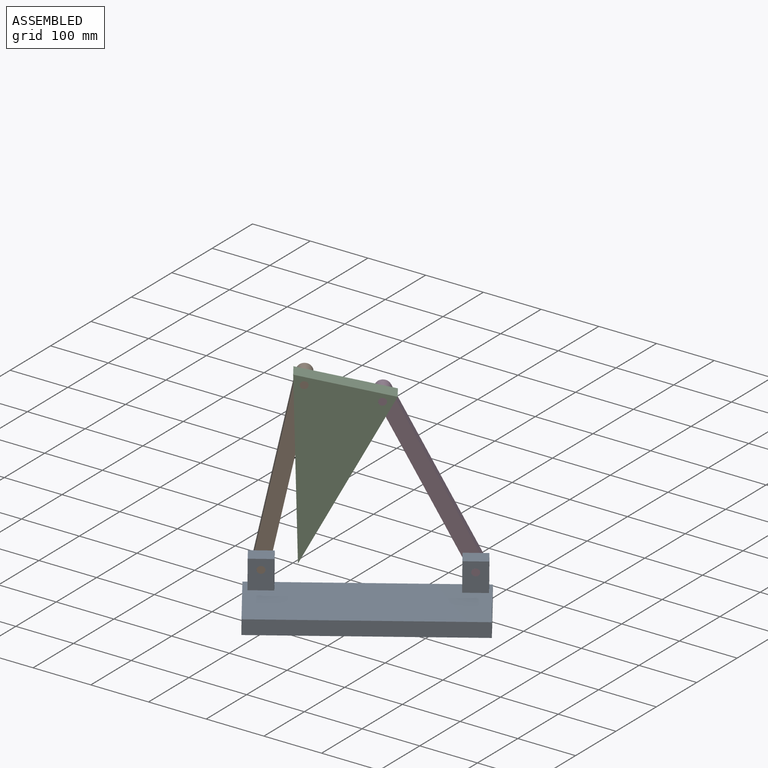
[diagram: assembled view]
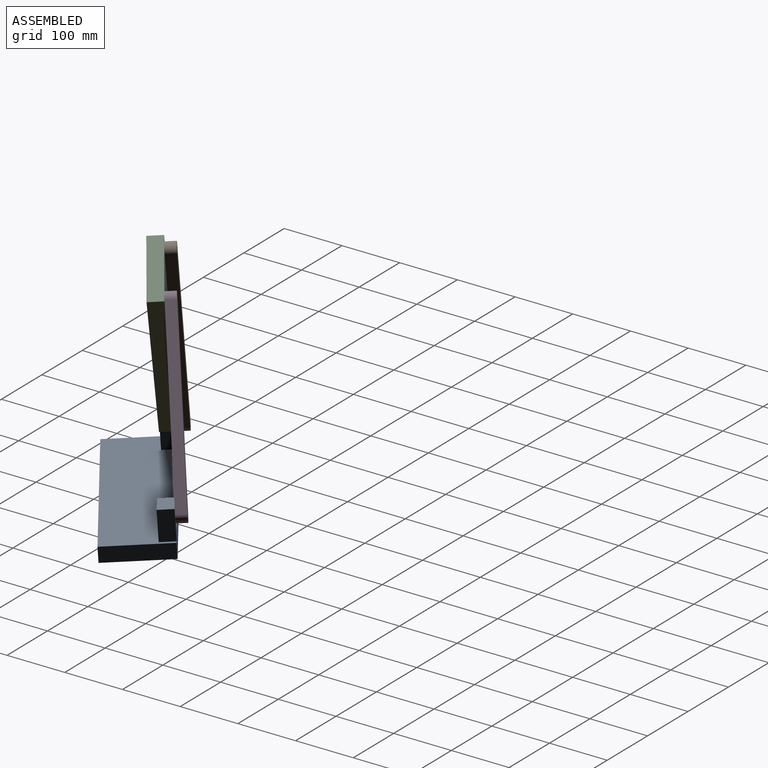
[diagram: assembled view, second angle]
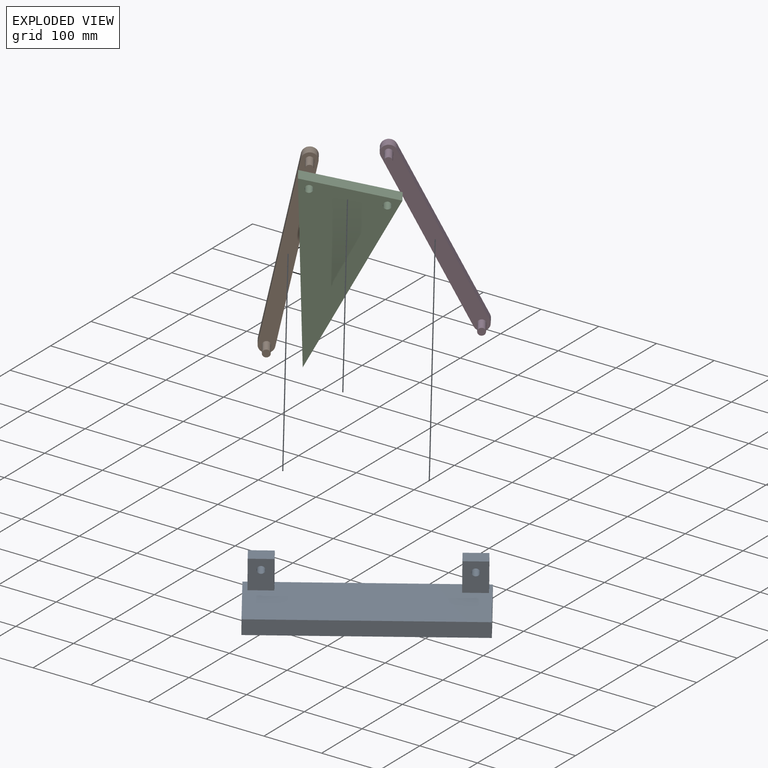
[diagram: exploded view]
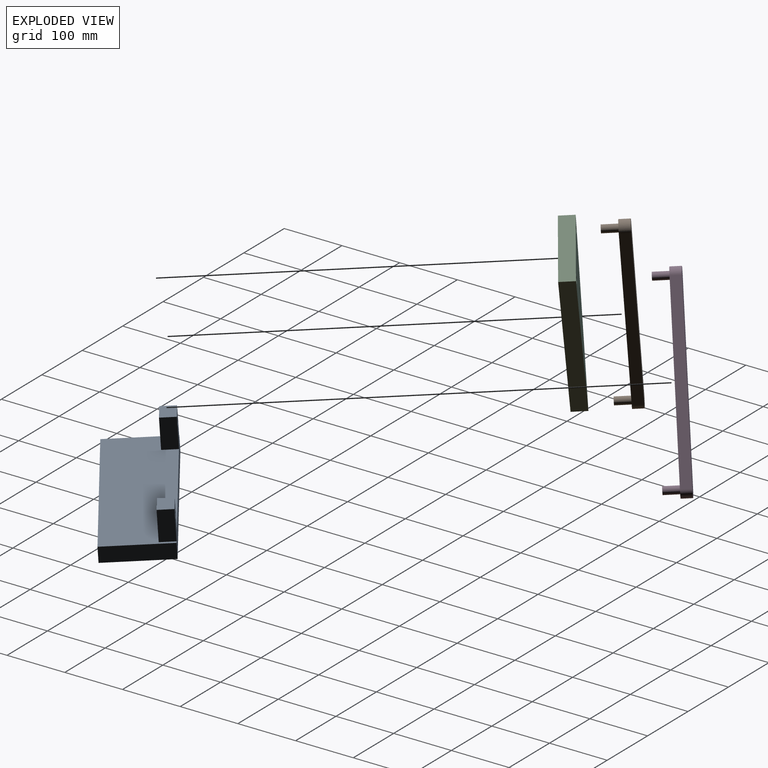
[diagram: exploded view, second angle]
ASSEMBLY  parts=4 mates=4
PART A: 16 faces, bbox 355.6x112.4x76.2 mm
  f0: plane 355.6x112.4mm, normal (0,0,1), area 38033.7mm2, adj f1,f2,f3,f4,f6,f7,f8,f10
  f1: plane 355.6x76.2mm, normal (0,1,0), area 12649.8mm2, adj f0,f2,f4,f5,f6,f7,f9,f10
  f2: plane 112.4x25.4mm, normal (-1,0,0), area 2854.9mm2, adj f0,f1,f3,f5
  f3: plane 355.6x25.4mm, normal (0,-1,0), area 9032.2mm2, adj f0,f2,f4,f5
  f4: plane 112.4x25.4mm, normal (1,0,0), area 2854.9mm2, adj f0,f1,f3,f5
  f5: plane 355.6x112.4mm, normal (0,0,-1), area 39969.1mm2, adj f1,f2,f3,f4
  f6: plane 50.8x25.4mm, normal (1,0,0), area 1290.3mm2, adj f0,f1,f8,f9
  f7: plane 50.8x25.4mm, normal (-1,0,0), area 1290.3mm2, adj f0,f1,f8,f9
  f8: plane 50.8x38.1mm, normal (0,-1,0), area 1808.8mm2, adj f0,f6,f7,f9,f15
  f9: plane 38.1x25.4mm, normal (0,0,1), area 967.7mm2, adj f1,f6,f7,f8
  f10: plane 50.8x25.4mm, normal (1,0,0), area 1290.3mm2, adj f0,f1,f12,f13
  f11: plane 50.8x25.4mm, normal (-1,0,0), area 1290.3mm2, adj f0,f1,f12,f13
  f12: plane 50.8x38.1mm, normal (0,-1,0), area 1808.8mm2, adj f0,f10,f11,f13,f14
  f13: plane 38.1x25.4mm, normal (0,0,1), area 967.7mm2, adj f1,f10,f11,f12
  f14: cylinder r=6.35mm len=25.4mm, axis (0,1,0), area 1013.4mm2, adj f1,f12
  f15: cylinder r=6.35mm len=25.4mm, axis (0,-1,0), area 1013.4mm2, adj f1,f8
PART B: 10 faces, bbox 330.2x25.4x43.2 mm
  f0: plane 304.8x17.78mm, normal (0,1,0), area 5419.3mm2, adj f1,f3,f4,f5
  f1: cylinder r=12.7mm len=25.4mm, axis (0,0,-1), area 709.4mm2, adj f0,f2,f4,f5
  f2: plane 304.8x17.78mm, normal (0,-1,0), area 5419.3mm2, adj f1,f3,f4,f5
  f3: cylinder r=12.7mm len=25.4mm, axis (0,0,-1), area 709.4mm2, adj f0,f2,f4,f5
  f4: plane 330.2x25.4mm, normal (0,0,1), area 7995.3mm2, adj f0,f1,f2,f3,f6,f8
  f5: plane 330.2x25.4mm, normal (0,0,-1), area 8248.6mm2, adj f0,f1,f2,f3
  f6: cylinder r=6.35mm len=25.4mm, axis (0,0,-1), area 1013.4mm2, adj f4,f7
  f7: plane 12.7x12.7mm, normal (0,0,1), area 126.7mm2, adj f6
  f8: cylinder r=6.35mm len=25.4mm, axis (0,0,-1), area 1013.4mm2, adj f4,f9
  f9: plane 12.7x12.7mm, normal (0,0,1), area 126.7mm2, adj f8
PART C: 7 faces, bbox 152.4x295.1x25.4 mm
  f0: plane 152.4x25.4mm, normal (0,1,0), area 3871mm2, adj f1,f2,f3,f4
  f1: plane 295.12x76.2mm, normal (-0.97,-0.25,0), area 7741.9mm2, adj f0,f2,f3,f4
  f2: plane 295.12x76.2mm, normal (0.97,-0.25,0), area 7741.9mm2, adj f0,f1,f3,f4
  f3: plane 295.12x152.4mm, normal (0,0,1), area 22234.9mm2, adj f0,f1,f2,f5,f6
  f4: plane 295.12x152.4mm, normal (0,0,-1), area 22234.9mm2, adj f0,f1,f2,f5,f6
  f5: cylinder r=6.35mm len=25.4mm, axis (0,0,1), area 1013.4mm2, adj f3,f4
  f6: cylinder r=6.35mm len=25.4mm, axis (0,0,1), area 1013.4mm2, adj f3,f4
PART D: same geometry as B
PLACE A rot(axis=(0.09,0.04,0.99),34.5deg) t=(-178.98,-131.36,-21.78)mm fixed
PLACE B rot(axis=(0.73,-0.29,0.62),135.3deg) t=(-297.6,-113.56,204.45)mm
PLACE C rot(axis=(0.9,0.4,0.17),95.2deg) t=(-275.62,-117.45,167.4)mm
PLACE D rot(axis=(0.56,-0.48,0.67),159.6deg) t=(-137.29,-4.28,207.53)mm
MATE revolute B.f3 <-> C.f6  axis (0.56,-0.82,-0.06) through (-270.35,-157.02,338.8)mm
MATE revolute B.f1 <-> A.f15  axis (0.56,-0.82,-0.06) through (-331.12,-177.04,40.79)mm
MATE revolute D.f1 <-> A.f14  axis (-0.56,0.82,0.06) through (-79.52,-5.01,38.42)mm
MATE revolute D.f3 <-> C.f5  axis (-0.56,0.82,0.06) through (-186.48,-82.49,313.41)mm
